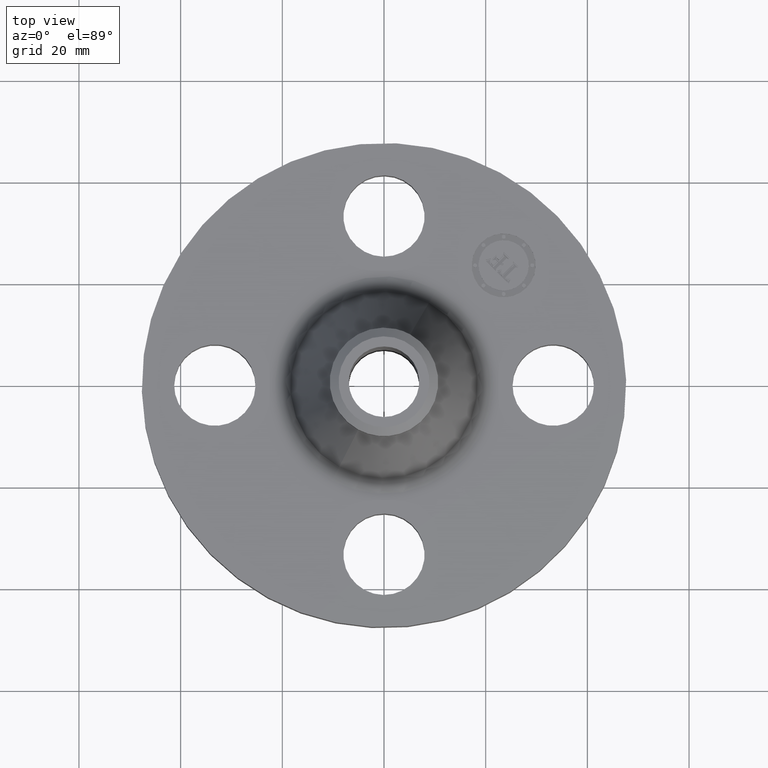
[diagram: clean part render]
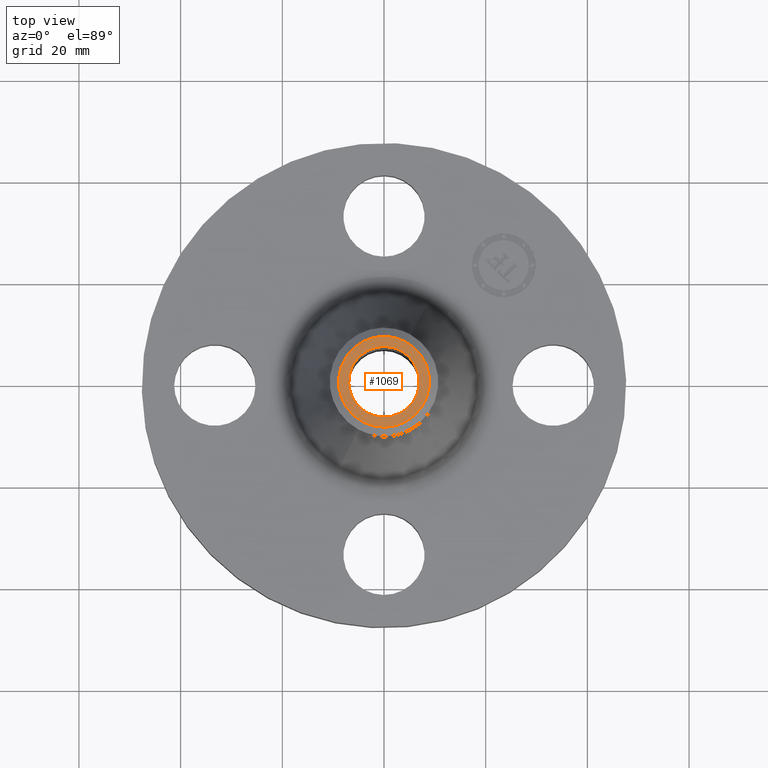
[diagram: same view with one face highlighted and labeled with its STEP entity id]
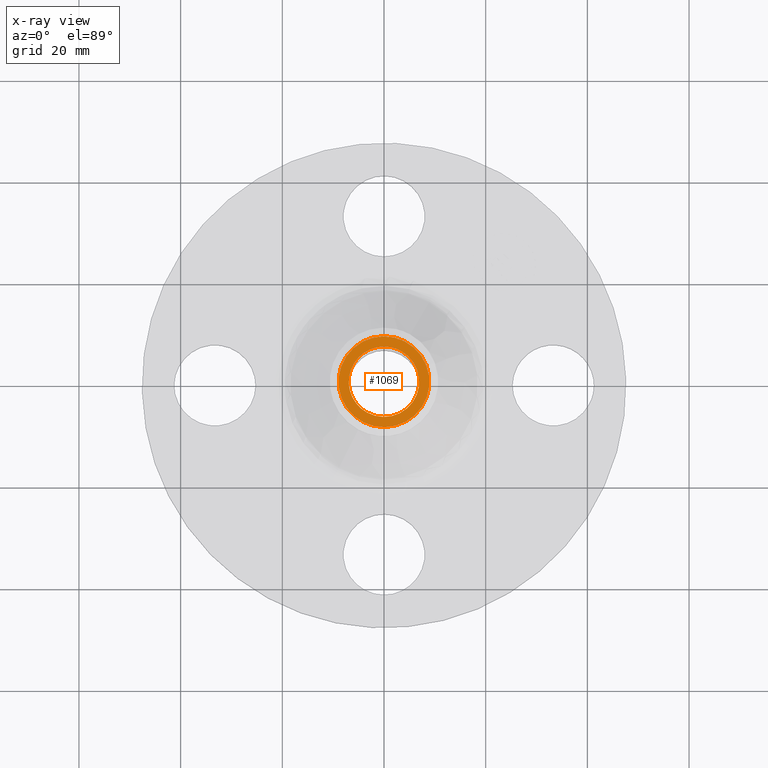
[diagram: x-ray of the same camera — body ghosted, the highlighted face saturated]
A machine part, top view. The second image highlights one B-rep face of the part: STEP entity #1069.
The next image is the same camera in x-ray: the body ghosted, the highlighted face saturated — about 0% of this face is hidden behind the body in this view.
In plain terms, the highlighted planar face has unit normal (0, 0, -1).
Its self-contained STEP definition (entity closure, byte-faithful):
#734=AXIS2_PLACEMENT_3D('Circle Axis2P3D',#732,#733,$) ;
#1045=AXIS2_PLACEMENT_3D('Plane Axis2P3D',#1042,#1043,#1044) ;
#1049=AXIS2_PLACEMENT_3D('Circle Axis2P3D',#1047,#1048,$) ;
#1058=AXIS2_PLACEMENT_3D('Circle Axis2P3D',#1056,#1057,$) ;
#732=CARTESIAN_POINT('Axis2P3D Location',(0.,0.,2.00000000001)) ;
#736=CARTESIAN_POINT('Vertex',(0.130883172066,0.239580039422,2.00000000001)) ;
#738=CARTESIAN_POINT('Vertex',(-0.13088317204,-0.239580039397,2.00000000001)) ;
#771=CARTESIAN_POINT('Control Point',(-0.13088317204,-0.239580039397,2.00000000001)) ;
#772=CARTESIAN_POINT('Control Point',(-0.168516316625,-0.219020958809,2.00000000001)) ;
#773=CARTESIAN_POINT('Control Point',(-0.202112695177,-0.191072627561,2.00000000001)) ;
#774=CARTESIAN_POINT('Control Point',(-0.22973126223,-0.156785961454,2.00000000001)) ;
#775=CARTESIAN_POINT('Control Point',(-0.270036462873,-0.0792308566154,2.00000000001)) ;
#776=CARTESIAN_POINT('Control Point',(-0.278024007971,0.00780650667616,2.00000000001)) ;
#777=CARTESIAN_POINT('Control Point',(-0.273308949913,0.051580116834,2.00000000001)) ;
#778=CARTESIAN_POINT('Control Point',(-0.246969290057,0.134919938073,2.00000000001)) ;
#779=CARTESIAN_POINT('Control Point',(-0.191072627561,0.202112695177,2.00000000001)) ;
#780=CARTESIAN_POINT('Control Point',(-0.156785961455,0.22973126223,2.00000000001)) ;
#781=CARTESIAN_POINT('Control Point',(-0.0792308566157,0.270036462873,2.00000000001)) ;
#782=CARTESIAN_POINT('Control Point',(0.0078065066759,0.278024007971,2.00000000001)) ;
#783=CARTESIAN_POINT('Control Point',(0.0515801168337,0.273308949913,2.00000000001)) ;
#784=CARTESIAN_POINT('Control Point',(0.0932500274533,0.260139119985,2.00000000001)) ;
#785=CARTESIAN_POINT('Control Point',(0.130883172039,0.239580039397,2.00000000001)) ;
#1042=CARTESIAN_POINT('Axis2P3D Location',(0.,0.420000000002,2.00000000001)) ;
#1047=CARTESIAN_POINT('Axis2P3D Location',(4.3665325074E-011,5.02806894982E-012,2.00000000001)) ;
#1051=CARTESIAN_POINT('Vertex',(0.168633214449,-0.308681028522,2.00000000001)) ;
#1053=CARTESIAN_POINT('Vertex',(-0.168633214449,0.308681028522,2.00000000001)) ;
#1056=CARTESIAN_POINT('Axis2P3D Location',(-1.28117638982E-011,-2.58255009678E-011,2.00000000001)) ;
#733=DIRECTION('Axis2P3D Direction',(0.,0.,-0.0393700787402)) ;
#1043=DIRECTION('Axis2P3D Direction',(0.,0.,-0.0393700787402)) ;
#1044=DIRECTION('Axis2P3D XDirection',(0.0393700787402,0.,0.)) ;
#1048=DIRECTION('Axis2P3D Direction',(0.,0.,-0.0393700787402)) ;
#1057=DIRECTION('Axis2P3D Direction',(0.,0.,-0.0393700787402)) ;
#1062=ORIENTED_EDGE('',*,*,#1055,.T.) ;
#1063=ORIENTED_EDGE('',*,*,#1060,.T.) ;
#1066=ORIENTED_EDGE('',*,*,#786,.T.) ;
#1067=ORIENTED_EDGE('',*,*,#740,.T.) ;
#1068=FACE_BOUND('',#1065,.T.) ;
#1069=ADVANCED_FACE('PartBody',(#1064,#1068),#1046,.F.) ;
#770=B_SPLINE_CURVE_WITH_KNOTS('',5,(#771,#772,#773,#774,#775,#776,#777,#778,#779,#780,#781,#782,#783,#784,#785),.UNSPECIFIED.,.F.,.U.,(6,3,3,3,6),(-10.8922158893,-5.44610794465,-8.881784197E-016,5.44610794465,10.8922158893),.UNSPECIFIED.) ;
#735=CIRCLE('generated circle',#734,0.273000000001) ;
#1050=CIRCLE('generated circle',#1049,0.351740157477) ;
#1059=CIRCLE('generated circle',#1058,0.351740157477) ;
#740=EDGE_CURVE('',#737,#739,#735,.T.) ;
#786=EDGE_CURVE('',#739,#737,#770,.T.) ;
#1055=EDGE_CURVE('',#1052,#1054,#1050,.F.) ;
#1060=EDGE_CURVE('',#1054,#1052,#1059,.F.) ;
#1061=EDGE_LOOP('',(#1062,#1063)) ;
#1065=EDGE_LOOP('',(#1066,#1067)) ;
#1064=FACE_OUTER_BOUND('',#1061,.T.) ;
#1046=PLANE('',#1045) ;
#737=VERTEX_POINT('',#736) ;
#739=VERTEX_POINT('',#738) ;
#1052=VERTEX_POINT('',#1051) ;
#1054=VERTEX_POINT('',#1053) ;